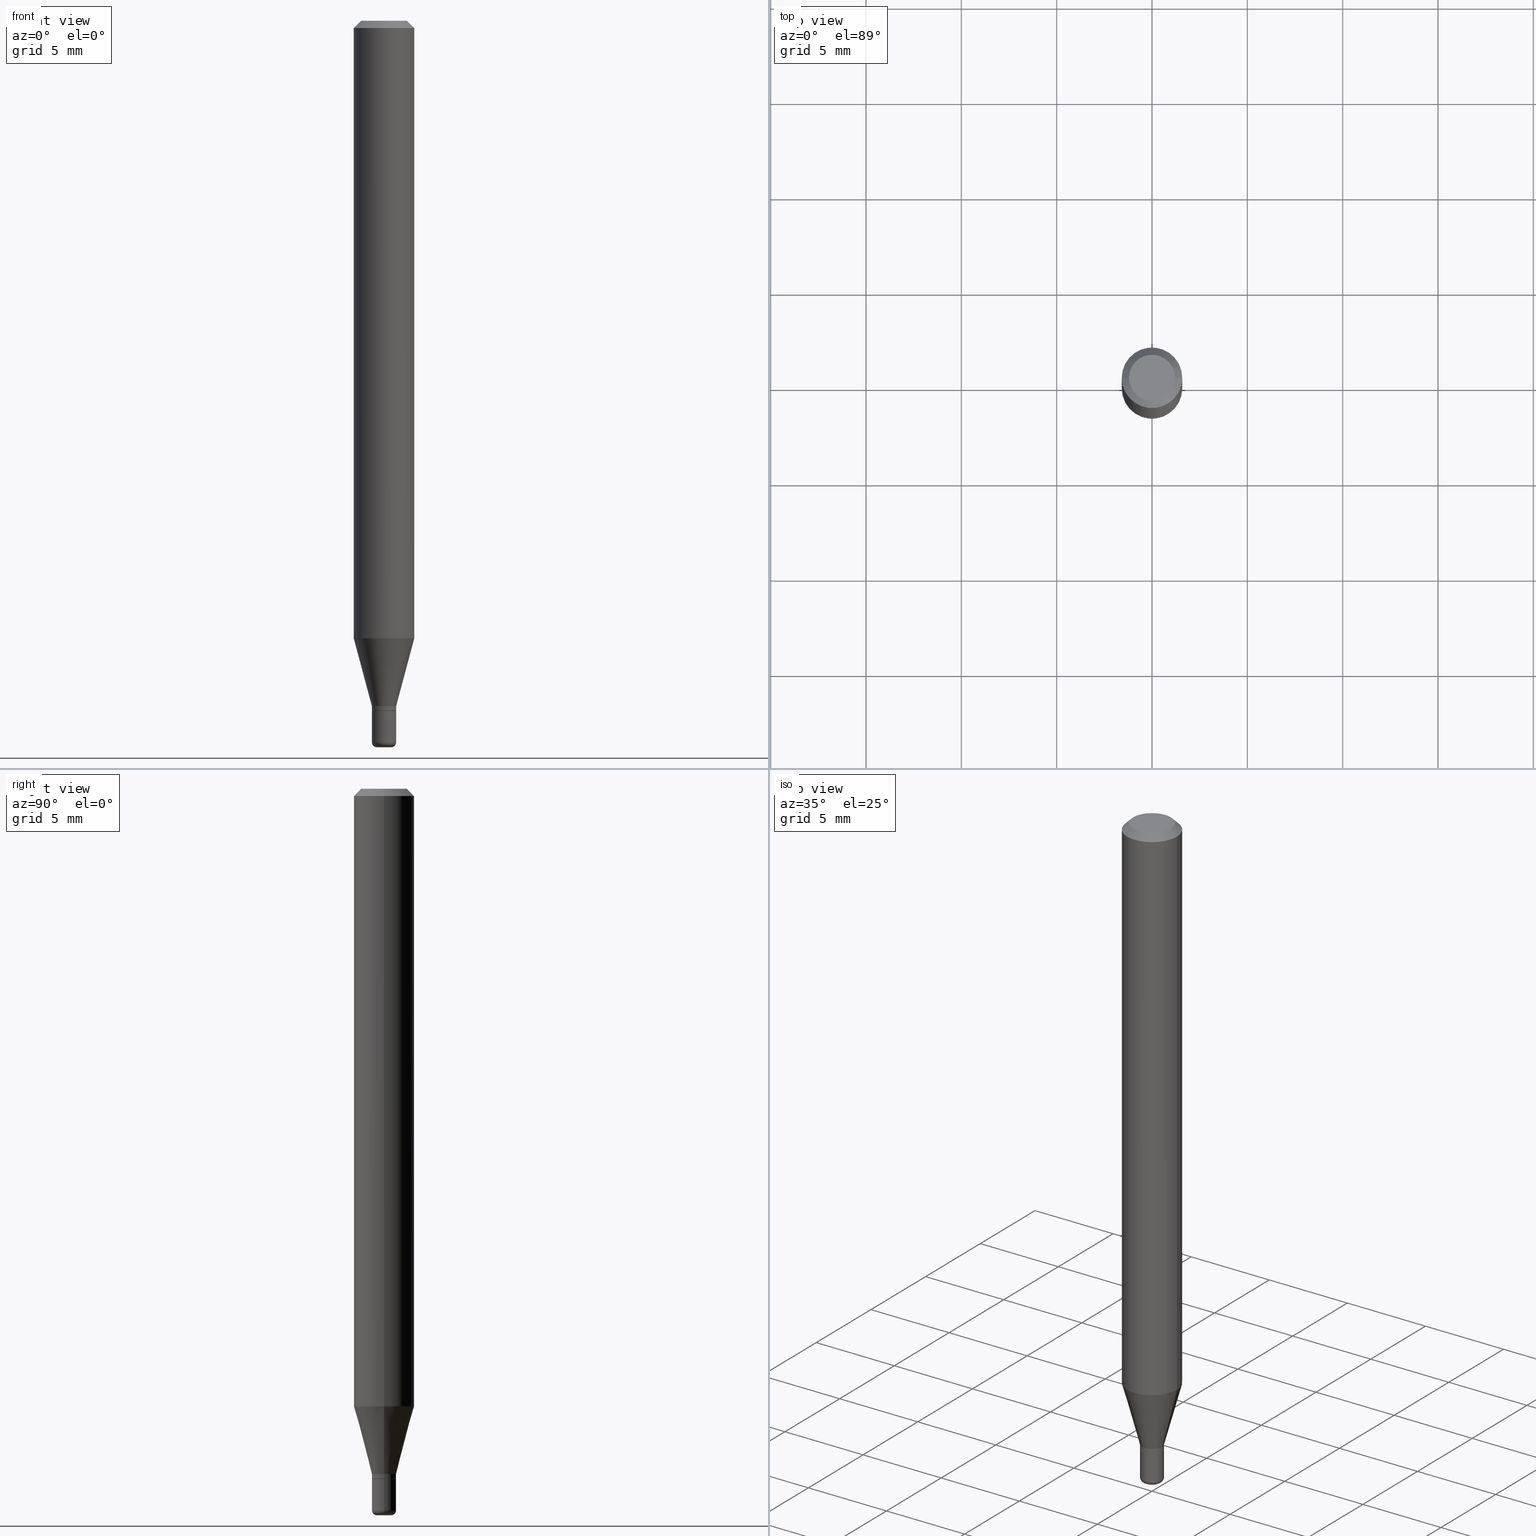
[diagram: canonical four-view strip — front | top / right | iso, engineering-drawing reading convention]
A machine part, canonical four-view strip (front | top / right | iso — engineering-drawing reading convention). The complete STEP part file that produces these views, byte-faithful:
ISO-10303-21;
HEADER;
FILE_DESCRIPTION (( 'STEP AP203' ),
    '1' );
FILE_NAME ('08523.STEP',
    '2024-02-29T19:41:33',
    ( '' ),
    ( '' ),
    'SwSTEP 2.0',
    'SolidWorks 2023',
    '' );
FILE_SCHEMA (( 'CONFIG_CONTROL_DESIGN' ));
ENDSEC;

DATA;
#1 = EDGE_CURVE ( 'NONE', #122, #200, #353, .T. ) ;
#2 = ORIENTED_EDGE ( 'NONE', *, *, #126, .T. ) ;
#3 = FACE_OUTER_BOUND ( 'NONE', #170, .T. ) ;
#4 = ORIENTED_EDGE ( 'NONE', *, *, #1, .F. ) ;
#5 = AXIS2_PLACEMENT_3D ( 'NONE', #328, #449, #320 ) ;
#6 = EDGE_LOOP ( 'NONE', ( #309, #46, #158, #438 ) ) ;
#7 = ADVANCED_BREP_SHAPE_REPRESENTATION ( '08523', ( #233, #143, #414 ), #221 ) ;
#8 = VERTEX_POINT ( 'NONE', #388 ) ;
#9 = CARTESIAN_POINT ( 'NONE',  ( 3.484793048813820547E-29, -4.975360907851483175E-15, -1.425000000000000266 ) ) ;
#10 = EDGE_CURVE ( 'NONE', #122, #473, #302, .T. ) ;
#11 = FACE_OUTER_BOUND ( 'NONE', #314, .T. ) ;
#12 = DIRECTION ( 'NONE',  ( -1.000000000000000000, 6.982962677686265922E-15, -4.876176775795935793E-29 ) ) ;
#13 = CARTESIAN_POINT ( 'NONE',  ( 3.668203209277632395E-31, -5.237222008264614861E-17, -0.01499999999999970281 ) ) ;
#14 = ADVANCED_FACE ( 'NONE', ( #389 ), #422, .T. ) ;
#15 = DIRECTION ( 'NONE',  ( 1.000000000000000000, -6.982962677686282488E-15, 0.000000000000000000 ) ) ;
#16 = ADVANCED_FACE ( 'NONE', ( #383 ), #30, .T. ) ;
#17 = FACE_OUTER_BOUND ( 'NONE', #285, .T. ) ;
#18 = AXIS2_PLACEMENT_3D ( 'NONE', #78, #474, #237 ) ;
#19 = CIRCLE ( 'NONE', #311, 0.06250000000000000000 ) ;
#20 = CARTESIAN_POINT ( 'NONE',  ( 3.483570314410727746E-29, -4.973615167182062460E-15, -1.424500000000000322 ) ) ;
#21 = FACE_OUTER_BOUND ( 'NONE', #43, .T. ) ;
#22 = PERSON_AND_ORGANIZATION ( #80, #323 ) ;
#23 = DIRECTION ( 'NONE',  ( -2.445468806185136597E-29, 3.491481338843145583E-15, 1.000000000000000000 ) ) ;
#24 = EDGE_CURVE ( 'NONE', #238, #264, #97, .T. ) ;
#25 = DIRECTION ( 'NONE',  ( -0.7071067811866199593, 7.493145998870616062E-15, 0.7071067811864750752 ) ) ;
#26 = VERTEX_POINT ( 'NONE', #420 ) ;
#27 = EDGE_CURVE ( 'NONE', #280, #26, #220, .T. ) ;
#28 = DIRECTION ( 'NONE',  ( 1.000000000000000000, -6.982962677686261977E-15, 0.000000000000000000 ) ) ;
#29 = DIRECTION ( 'NONE',  ( 2.445468806185136597E-29, -3.491481338843145583E-15, -1.000000000000000000 ) ) ;
#30 = CYLINDRICAL_SURFACE ( 'NONE', #310, 0.06250000000000000000 ) ;
#31 = AXIS2_PLACEMENT_3D ( 'NONE', #379, #53, #500 ) ;
#32 = CARTESIAN_POINT ( 'NONE',  ( -0.02449999999999996972, -4.801277937590258869E-15, -1.425000000000000266 ) ) ;
#33 = LOCAL_TIME ( 14, 41, 33.00000000000000000, #68 ) ;
#34 = DIRECTION ( 'NONE',  ( -2.445468806185136877E-29, 3.491481338843145188E-15, 1.000000000000000000 ) ) ;
#35 = PERSON_AND_ORGANIZATION ( #80, #323 ) ;
#36 = DIRECTION ( 'NONE',  ( -2.445468806185136597E-29, 3.491481338843145583E-15, 1.000000000000000000 ) ) ;
#37 = VERTEX_POINT ( 'NONE', #307 ) ;
#38 = LOCAL_TIME ( 14, 41, 33.00000000000000000, #223 ) ;
#39 = ORIENTED_EDGE ( 'NONE', *, *, #42, .F. ) ;
#40 = CC_DESIGN_PERSON_AND_ORGANIZATION_ASSIGNMENT ( #503, #423, ( #398 ) ) ;
#41 = ORIENTED_EDGE ( 'NONE', *, *, #484, .T. ) ;
#42 = EDGE_CURVE ( 'NONE', #390, #168, #57, .T. ) ;
#43 = EDGE_LOOP ( 'NONE', ( #79, #241, #4, #480 ) ) ;
#44 = CARTESIAN_POINT ( 'NONE',  ( -0.02499999999999998057, -4.385263914750983308E-15, -1.415000000000000036 ) ) ;
#45 = VECTOR ( 'NONE', #62, 39.37007874015748143 ) ;
#46 = ORIENTED_EDGE ( 'NONE', *, *, #210, .F. ) ;
#47 = EDGE_CURVE ( 'NONE', #108, #199, #516, .T. ) ;
#48 = ORIENTED_EDGE ( 'NONE', *, *, #421, .F. ) ;
#49 = DIRECTION ( 'NONE',  ( 1.000000000000000000, -6.982962677686269866E-15, 0.000000000000000000 ) ) ;
#50 = DIRECTION ( 'NONE',  ( -2.445468806185136877E-29, 3.491481338843145188E-15, 1.000000000000000000 ) ) ;
#51 = CONICAL_SURFACE ( 'NONE', #246, 0.06250000000000000000, 0.7853981633974488341 ) ;
#52 = AXIS2_PLACEMENT_3D ( 'NONE', #149, #295, #459 ) ;
#53 = DIRECTION ( 'NONE',  ( -2.445468806185136597E-29, 3.491481338843145583E-15, 1.000000000000000000 ) ) ;
#54 = ADVANCED_FACE ( 'NONE', ( #216 ), #402, .T. ) ;
#55 = APPROVAL ( #458, 'UNSPECIFIED' ) ;
#56 = FACE_OUTER_BOUND ( 'NONE', #427, .T. ) ;
#57 = LINE ( 'NONE', #32, #232 ) ;
#58 = CARTESIAN_POINT ( 'NONE',  ( 3.484793048813820547E-29, -4.975360907851483175E-15, -1.425000000000000266 ) ) ;
#59 = DATE_TIME_ROLE ( 'creation_date' ) ;
#60 = DIRECTION ( 'NONE',  ( 0.7071067811866199593, -2.468850131083015945E-15, 0.7071067811864750752 ) ) ;
#61 = DIRECTION ( 'NONE',  ( 1.000000000000000000, -6.982962677686254878E-15, 0.000000000000000000 ) ) ;
#62 = DIRECTION ( 'NONE',  ( -0.2588190451025205174, 5.211531920934544731E-15, 0.9659258262890684232 ) ) ;
#63 = COORDINATED_UNIVERSAL_TIME_OFFSET ( 5, 0, .BEHIND. ) ;
#64 = DIRECTION ( 'NONE',  ( -2.445468806185136597E-29, 3.491481338843145583E-15, 1.000000000000000000 ) ) ;
#65 = CARTESIAN_POINT ( 'NONE',  ( 0.000000000000000000, 0.000000000000000000, 0.000000000000000000 ) ) ;
#66 = EDGE_CURVE ( 'NONE', #200, #137, #472, .T. ) ;
#67 = EDGE_CURVE ( 'NONE', #426, #396, #75, .T. ) ;
#68 = COORDINATED_UNIVERSAL_TIME_OFFSET ( 5, 0, .BEHIND. ) ;
#69 = CARTESIAN_POINT ( 'NONE',  ( 3.668203209277632395E-31, -5.237222008264614861E-17, -0.01499999999999970281 ) ) ;
#70 = DIRECTION ( 'NONE',  ( 1.000000000000000000, -6.982962677686265922E-15, 4.876176775795935793E-29 ) ) ;
#71 = APPLICATION_CONTEXT ( 'configuration controlled 3d designs of mechanical parts and assemblies' ) ;
#72 = EDGE_LOOP ( 'NONE', ( #358, #90, #195, #482 ) ) ;
#73 = ADVANCED_FACE ( 'NONE', ( #465 ), #150, .T. ) ;
#74 = APPLICATION_PROTOCOL_DEFINITION ( 'international standard', 'config_control_design', 1994, #71 ) ;
#75 = CIRCLE ( 'NONE', #201, 0.02499999999999998057 ) ;
#76 = CC_DESIGN_PERSON_AND_ORGANIZATION_ASSIGNMENT ( #35, #329, ( #398 ) ) ;
#77 = AXIS2_PLACEMENT_3D ( 'NONE', #499, #446, #174 ) ;
#78 = CARTESIAN_POINT ( 'NONE',  ( 3.643748521215853910E-29, -5.202307194876288105E-15, -1.490000000000000213 ) ) ;
#79 = ORIENTED_EDGE ( 'NONE', *, *, #67, .T. ) ;
#80 = PERSON ( 'UNSPECIFIED', 'UNSPECIFIED', 'UNSPECIFIED', ('UNSPECIFIED'), ('UNSPECIFIED'), ('UNSPECIFIED') ) ;
#81 = DIRECTION ( 'NONE',  ( -2.445468806185136597E-29, 3.491481338843145583E-15, 1.000000000000000000 ) ) ;
#82 = APPROVAL ( #106, 'UNSPECIFIED' ) ;
#83 = ORIENTED_EDGE ( 'NONE', *, *, #208, .F. ) ;
#84 = APPLICATION_CONTEXT ( 'configuration controlled 3d designs of mechanical parts and assemblies' ) ;
#85 = CONICAL_SURFACE ( 'NONE', #464, 0.02499999999999998057, 0.2617993877991491858 ) ;
#86 = ORIENTED_EDGE ( 'NONE', *, *, #161, .T. ) ;
#87 = ADVANCED_FACE ( 'NONE', ( #17 ), #51, .T. ) ;
#88 = EDGE_LOOP ( 'NONE', ( #231, #283, #518, #204 ) ) ;
#89 = DIRECTION ( 'NONE',  ( 1.000000000000000000, -6.982962677686254878E-15, 0.000000000000000000 ) ) ;
#90 = ORIENTED_EDGE ( 'NONE', *, *, #208, .T. ) ;
#91 = CONICAL_SURFACE ( 'NONE', #360, 0.02499999999999998057, 0.2617993877991491858 ) ;
#92 = AXIS2_PLACEMENT_3D ( 'NONE', #9, #98, #15 ) ;
#93 = ORIENTED_EDGE ( 'NONE', *, *, #148, .F. ) ;
#94 = LINE ( 'NONE', #408, #514 ) ;
#95 = PRODUCT_RELATED_PRODUCT_CATEGORY ( 'detail', '', ( #159 ) ) ;
#96 = ORIENTED_EDGE ( 'NONE', *, *, #27, .F. ) ;
#97 = CIRCLE ( 'NONE', #386, 0.009999999999999944697 ) ;
#98 = DIRECTION ( 'NONE',  ( -2.445468806185136597E-29, 3.491481338843145583E-15, 1.000000000000000000 ) ) ;
#99 = VECTOR ( 'NONE', #443, 39.37007874015748143 ) ;
#100 = CARTESIAN_POINT ( 'NONE',  ( 0.02499999999999997363, -1.745740669421564705E-16, 1.219044193948982547E-30 ) ) ;
#101 = CARTESIAN_POINT ( 'NONE',  ( -6.680649051745406845E-45, 9.538196290434862081E-31, 2.731847993664263218E-16 ) ) ;
#102 = DATE_AND_TIME ( #510, #405 ) ;
#103 = LINE ( 'NONE', #410, #404 ) ;
#104 = CARTESIAN_POINT ( 'NONE',  ( 0.000000000000000000, 0.000000000000000000, 0.000000000000000000 ) ) ;
#105 = DIRECTION ( 'NONE',  ( 1.000000000000000000, -6.982962677686261977E-15, 0.000000000000000000 ) ) ;
#106 = APPROVAL_STATUS ( 'not_yet_approved' ) ;
#107 = DIRECTION ( 'NONE',  ( 1.000000000000000000, -6.982962677686265922E-15, 4.876176775795935232E-29 ) ) ;
#108 = VERTEX_POINT ( 'NONE', #385 ) ;
#109 = CONICAL_SURFACE ( 'NONE', #286, 0.02449999999999996972, 0.7853981633975507526 ) ;
#110 = CIRCLE ( 'NONE', #239, 0.06250000000000000000 ) ;
#111 = LINE ( 'NONE', #100, #378 ) ;
#112 = DIRECTION ( 'NONE',  ( -2.445468806185136877E-29, 3.491481338843145188E-15, 1.000000000000000000 ) ) ;
#113 = ORIENTED_EDGE ( 'NONE', *, *, #1, .T. ) ;
#114 = PERSON_AND_ORGANIZATION_ROLE ( 'classification_officer' ) ;
#115 = DIRECTION ( 'NONE',  ( 2.445468806185136597E-29, -3.491481338843145583E-15, -1.000000000000000000 ) ) ;
#116 = EDGE_LOOP ( 'NONE', ( #312, #363 ) ) ;
#117 = ADVANCED_FACE ( 'NONE', ( #382 ), #189, .T. ) ;
#118 = APPROVAL_ROLE ( '' ) ;
#119 = CARTESIAN_POINT ( 'NONE',  ( 3.460338360751968441E-29, -4.940446094463050737E-15, -1.415000000000000036 ) ) ;
#120 = ORIENTED_EDGE ( 'NONE', *, *, #66, .T. ) ;
#121 = CONICAL_SURFACE ( 'NONE', #292, 0.02449999999999996972, 0.7853981633975507526 ) ;
#122 = VERTEX_POINT ( 'NONE', #407 ) ;
#123 = ADVANCED_FACE ( 'NONE', ( #411 ), #251, .T. ) ;
#124 = ORIENTED_EDGE ( 'NONE', *, *, #338, .F. ) ;
#125 = DIRECTION ( 'NONE',  ( -2.445468806185136597E-29, 3.491481338843145583E-15, 1.000000000000000000 ) ) ;
#126 = EDGE_CURVE ( 'NONE', #347, #473, #436, .T. ) ;
#127 = ADVANCED_FACE ( 'NONE', ( #3 ), #109, .T. ) ;
#128 = ORIENTED_EDGE ( 'NONE', *, *, #198, .F. ) ;
#129 = AXIS2_PLACEMENT_3D ( 'NONE', #330, #219, #61 ) ;
#130 = DIRECTION ( 'NONE',  ( 1.000000000000000000, -6.982962677686282488E-15, 0.000000000000000000 ) ) ;
#131 = CIRCLE ( 'NONE', #276, 0.01500000000000000465 ) ;
#132 = APPROVAL_PERSON_ORGANIZATION ( #343, #82, #118 ) ;
#133 = ORIENTED_EDGE ( 'NONE', *, *, #431, .F. ) ;
#134 = CARTESIAN_POINT ( 'NONE',  ( 3.484793048813820547E-29, -4.975360907851483175E-15, -1.425000000000000266 ) ) ;
#135 = ADVANCED_FACE ( 'NONE', ( #359 ), #121, .T. ) ;
#136 = ORIENTED_EDGE ( 'NONE', *, *, #392, .T. ) ;
#137 = VERTEX_POINT ( 'NONE', #506 ) ;
#138 = PLANE ( 'NONE',  #247 ) ;
#139 = ADVANCED_FACE ( 'NONE', ( #21 ), #91, .T. ) ;
#140 = VECTOR ( 'NONE', #430, 39.37007874015748143 ) ;
#141 = CARTESIAN_POINT ( 'NONE',  ( 0.02499999999999994588, -5.376881261818443984E-15, -1.490000000000000213 ) ) ;
#142 = AXIS2_PLACEMENT_3D ( 'NONE', #58, #333, #155 ) ;
#143 = MANIFOLD_SOLID_BREP ( 'Body-Move/Copy2[2]', #450 ) ;
#144 = PLANE ( 'NONE',  #202 ) ;
#145 = CARTESIAN_POINT ( 'NONE',  ( 3.643748521215853910E-29, -5.202307194876288105E-15, -1.490000000000000213 ) ) ;
#146 = ADVANCED_FACE ( 'NONE', ( #269 ), #291, .T. ) ;
#147 = PERSON_AND_ORGANIZATION ( #80, #323 ) ;
#148 = EDGE_CURVE ( 'NONE', #347, #351, #173, .T. ) ;
#149 = CARTESIAN_POINT ( 'NONE',  ( 3.460338360751968441E-29, -4.940446094463050737E-15, -1.415000000000000036 ) ) ;
#150 = CYLINDRICAL_SURFACE ( 'NONE', #322, 0.02499999999999997363 ) ;
#151 = DIRECTION ( 'NONE',  ( 0.000000000000000000, 0.000000000000000000, 1.000000000000000000 ) ) ;
#152 = CYLINDRICAL_SURFACE ( 'NONE', #365, 0.02499999999999997710 ) ;
#153 = CARTESIAN_POINT ( 'NONE',  ( -0.06250000000000000000, 4.440892098500626162E-16, -3.074334431409316114E-30 ) ) ;
#154 = DATE_TIME_ROLE ( 'classification_date' ) ;
#155 = DIRECTION ( 'NONE',  ( 1.000000000000000000, -6.982962677686282488E-15, 0.000000000000000000 ) ) ;
#156 = DIRECTION ( 'NONE',  ( -1.000000000000000000, 7.105427357600964782E-15, 0.000000000000000000 ) ) ;
#157 = CALENDAR_DATE ( 2024, 29, 2 ) ;
#158 = ORIENTED_EDGE ( 'NONE', *, *, #367, .T. ) ;
#159 = PRODUCT ( '08523', '08523', '', ( #257 ) ) ;
#160 = CARTESIAN_POINT ( 'NONE',  ( 0.06250000000000000000, -4.811533449433669144E-16, -0.01499999999999970281 ) ) ;
#161 = EDGE_CURVE ( 'NONE', #390, #8, #235, .T. ) ;
#162 = EDGE_LOOP ( 'NONE', ( #305, #224, #163, #395 ) ) ;
#163 = ORIENTED_EDGE ( 'NONE', *, *, #484, .F. ) ;
#164 = CARTESIAN_POINT ( 'NONE',  ( 3.484793048813820547E-29, -4.975360907851483175E-15, -1.425000000000000266 ) ) ;
#165 = EDGE_LOOP ( 'NONE', ( #39, #86, #417, #124 ) ) ;
#166 = CIRCLE ( 'NONE', #142, 0.02449999999999996972 ) ;
#167 = CC_DESIGN_APPROVAL ( #82, ( #478 ) ) ;
#168 = VERTEX_POINT ( 'NONE', #412 ) ;
#169 = DIRECTION ( 'NONE',  ( 2.438088387897960049E-29, -3.491481338843145188E-15, -1.000000000000000000 ) ) ;
#170 = EDGE_LOOP ( 'NONE', ( #250, #185, #128, #356 ) ) ;
#171 = AXIS2_PLACEMENT_3D ( 'NONE', #65, #36, #70 ) ;
#172 = PLANE ( 'NONE',  #476 ) ;
#173 = CIRCLE ( 'NONE', #77, 0.04750000000000000749 ) ;
#174 = DIRECTION ( 'NONE',  ( 1.000000000000000000, -6.982962677686266711E-15, 4.852736867747365086E-29 ) ) ;
#175 = EDGE_CURVE ( 'NONE', #426, #122, #214, .T. ) ;
#176 = DIRECTION ( 'NONE',  ( 1.000000000000000000, -6.982962677686265922E-15, 4.876176775795935232E-29 ) ) ;
#177 = CARTESIAN_POINT ( 'NONE',  ( 0.02499999999999997710, -1.745740669421564952E-16, 1.219044193948982897E-30 ) ) ;
#178 = CC_DESIGN_PERSON_AND_ORGANIZATION_ASSIGNMENT ( #22, #471, ( #159 ) ) ;
#179 = AXIS2_PLACEMENT_3D ( 'NONE', #457, #461, #502 ) ;
#180 = DIRECTION ( 'NONE',  ( 2.438088387897960049E-29, -3.491481338843145188E-15, -1.000000000000000000 ) ) ;
#181 = CARTESIAN_POINT ( 'NONE',  ( 0.04750000000000000749, -4.035134999187568762E-16, 2.731847993664288856E-16 ) ) ;
#182 = DIRECTION ( 'NONE',  ( -2.445468806185136597E-29, 3.491481338843145583E-15, 1.000000000000000000 ) ) ;
#183 = DATE_AND_TIME ( #294, #33 ) ;
#184 = DIRECTION ( 'NONE',  ( -2.445468806185136597E-29, 3.491481338843145583E-15, 1.000000000000000000 ) ) ;
#185 = ORIENTED_EDGE ( 'NONE', *, *, #42, .T. ) ;
#186 = APPROVAL_ROLE ( '' ) ;
#187 = DIRECTION ( 'NONE',  ( 1.000000000000000000, -6.982962677686260400E-15, 0.000000000000000000 ) ) ;
#188 = CARTESIAN_POINT ( 'NONE',  ( 0.000000000000000000, 0.000000000000000000, 0.000000000000000000 ) ) ;
#189 = CONICAL_SURFACE ( 'NONE', #463, 0.06250000000000000000, 0.7853981633974488341 ) ;
#190 = APPROVAL_DATE_TIME ( #183, #511 ) ;
#191 = CIRCLE ( 'NONE', #287, 0.04750000000000000749 ) ;
#192 = CC_DESIGN_SECURITY_CLASSIFICATION ( #222, ( #398 ) ) ;
#193 = CARTESIAN_POINT ( 'NONE',  ( 3.668203209277632395E-31, -5.237222008264614861E-17, -0.01499999999999970281 ) ) ;
#194 = CARTESIAN_POINT ( 'NONE',  ( -0.06250000000000000000, 3.840629472727455270E-16, -0.01499999999999970281 ) ) ;
#195 = ORIENTED_EDGE ( 'NONE', *, *, #67, .F. ) ;
#196 = CIRCLE ( 'NONE', #331, 0.02499999999999994588 ) ;
#197 = ORIENTED_EDGE ( 'NONE', *, *, #337, .T. ) ;
#198 = EDGE_CURVE ( 'NONE', #37, #168, #434, .T. ) ;
#199 = VERTEX_POINT ( 'NONE', #141 ) ;
#200 = VERTEX_POINT ( 'NONE', #454 ) ;
#201 = AXIS2_PLACEMENT_3D ( 'NONE', #119, #301, #187 ) ;
#202 = AXIS2_PLACEMENT_3D ( 'NONE', #252, #293, #456 ) ;
#203 = DIRECTION ( 'NONE',  ( -2.445468806185136597E-29, 3.491481338843145583E-15, 1.000000000000000000 ) ) ;
#204 = ORIENTED_EDGE ( 'NONE', *, *, #240, .F. ) ;
#205 = FACE_OUTER_BOUND ( 'NONE', #116, .T. ) ;
#206 = ORIENTED_EDGE ( 'NONE', *, *, #421, .T. ) ;
#207 = CARTESIAN_POINT ( 'NONE',  ( -0.02449999999999996972, -4.798628710416148457E-15, -1.425000000000000266 ) ) ;
#208 = EDGE_CURVE ( 'NONE', #168, #396, #94, .T. ) ;
#209 = CARTESIAN_POINT ( 'NONE',  ( 0.06250000000000000000, -4.888073874380378612E-16, -0.01499999999999970281 ) ) ;
#210 = EDGE_CURVE ( 'NONE', #351, #347, #191, .T. ) ;
#211 = VECTOR ( 'NONE', #226, 39.37007874015748143 ) ;
#212 = CARTESIAN_POINT ( 'NONE',  ( 3.643748521215853910E-29, -5.202307194876288105E-15, -1.490000000000000213 ) ) ;
#213 = DIRECTION ( 'NONE',  ( -2.445468806185136597E-29, 3.491481338843145583E-15, 1.000000000000000000 ) ) ;
#214 = LINE ( 'NONE', #494, #99 ) ;
#215 = CYLINDRICAL_SURFACE ( 'NONE', #387, 0.02499999999999997363 ) ;
#216 = FACE_OUTER_BOUND ( 'NONE', #162, .T. ) ;
#217 = APPROVAL_STATUS ( 'not_yet_approved' ) ;
#218 = CARTESIAN_POINT ( 'NONE',  ( 3.668203209277704895E-29, -5.237222008264718177E-15, -1.500000000000000222 ) ) ;
#219 = DIRECTION ( 'NONE',  ( -2.445468806185136597E-29, 3.491481338843145583E-15, 1.000000000000000000 ) ) ;
#220 = CIRCLE ( 'NONE', #129, 0.02500000000000000139 ) ;
#221 =( GEOMETRIC_REPRESENTATION_CONTEXT ( 3 ) GLOBAL_UNCERTAINTY_ASSIGNED_CONTEXT ( ( #451 ) ) GLOBAL_UNIT_ASSIGNED_CONTEXT ( ( #489, #364, #492 ) ) REPRESENTATION_CONTEXT ( 'NONE', 'WORKASPACE' ) );
#222 = SECURITY_CLASSIFICATION ( '', '', #409 ) ;
#223 = COORDINATED_UNIVERSAL_TIME_OFFSET ( 5, 0, .BEHIND. ) ;
#224 = ORIENTED_EDGE ( 'NONE', *, *, #24, .T. ) ;
#225 = EDGE_CURVE ( 'NONE', #8, #390, #166, .T. ) ;
#226 = DIRECTION ( 'NONE',  ( -2.445468806185136877E-29, 3.491481338843145188E-15, 1.000000000000000000 ) ) ;
#227 = ORIENTED_EDGE ( 'NONE', *, *, #288, .T. ) ;
#228 = DATE_AND_TIME ( #462, #361 ) ;
#229 = ADVANCED_FACE ( 'NONE', ( #266 ), #85, .T. ) ;
#230 = EDGE_CURVE ( 'NONE', #199, #26, #111, .T. ) ;
#231 = ORIENTED_EDGE ( 'NONE', *, *, #66, .F. ) ;
#232 = VECTOR ( 'NONE', #25, 39.37007874015748143 ) ;
#233 = MANIFOLD_SOLID_BREP ( 'Body-Move/Copy2[1]', #345 ) ;
#234 = APPLICATION_PROTOCOL_DEFINITION ( 'international standard', 'config_control_design', 1994, #84 ) ;
#235 = CIRCLE ( 'NONE', #92, 0.02449999999999996972 ) ;
#236 = CARTESIAN_POINT ( 'NONE',  ( 0.06250000000000000000, -4.364351673553916694E-16, 3.047610484872459871E-30 ) ) ;
#237 = DIRECTION ( 'NONE',  ( 1.000000000000000000, -6.982962677686269866E-15, 4.883557194083113462E-29 ) ) ;
#238 = VERTEX_POINT ( 'NONE', #258 ) ;
#239 = AXIS2_PLACEMENT_3D ( 'NONE', #13, #255, #339 ) ;
#240 = EDGE_CURVE ( 'NONE', #137, #473, #110, .T. ) ;
#241 = ORIENTED_EDGE ( 'NONE', *, *, #431, .T. ) ;
#242 = CC_DESIGN_DATE_AND_TIME_ASSIGNMENT ( #228, #154, ( #222 ) ) ;
#243 = CARTESIAN_POINT ( 'NONE',  ( -0.02499999999999997363, 1.776356839400248591E-16, -1.229733772563725079E-30 ) ) ;
#244 = ORIENTED_EDGE ( 'NONE', *, *, #175, .T. ) ;
#245 = EDGE_LOOP ( 'NONE', ( #113, #120, #48, #491 ) ) ;
#246 = AXIS2_PLACEMENT_3D ( 'NONE', #69, #115, #267 ) ;
#247 = AXIS2_PLACEMENT_3D ( 'NONE', #445, #180, #12 ) ;
#248 = CARTESIAN_POINT ( 'NONE',  ( 3.643748521215853910E-29, -5.202307194876288105E-15, -1.490000000000000213 ) ) ;
#249 = DIRECTION ( 'NONE',  ( -2.445468806185136597E-29, 3.491481338843145583E-15, 1.000000000000000000 ) ) ;
#250 = ORIENTED_EDGE ( 'NONE', *, *, #225, .T. ) ;
#251 = TOROIDAL_SURFACE ( 'NONE', #18, 0.01500000000000000291, 0.009999999999999946432 ) ;
#252 = CARTESIAN_POINT ( 'NONE',  ( 3.484793048813820547E-29, -4.975360907851483175E-15, -1.425000000000000266 ) ) ;
#253 = CIRCLE ( 'NONE', #31, 0.01500000000000000465 ) ;
#254 = ADVANCED_FACE ( 'NONE', ( #415 ), #152, .T. ) ;
#255 = DIRECTION ( 'NONE',  ( -2.445468806185136597E-29, 3.491481338843145583E-15, 1.000000000000000000 ) ) ;
#256 = DIRECTION ( 'NONE',  ( 1.000000000000000000, -6.982962677686266711E-15, 4.852736867747365086E-29 ) ) ;
#257 = MECHANICAL_CONTEXT ( 'NONE', #84, 'mechanical' ) ;
#258 = CARTESIAN_POINT ( 'NONE',  ( -0.01500000000000000465, -5.077656054418483766E-15, -1.500000000000000222 ) ) ;
#259 = CARTESIAN_POINT ( 'NONE',  ( 0.01500000000000000291, -5.307051635041582264E-15, -1.490000000000000213 ) ) ;
#260 = CARTESIAN_POINT ( 'NONE',  ( 0.02499999999999998057, -5.115020161405207405E-15, -1.415000000000000036 ) ) ;
#261 = APPROVAL_DATE_TIME ( #102, #82 ) ;
#262 = LINE ( 'NONE', #194, #504 ) ;
#263 = DIRECTION ( 'NONE',  ( -2.445468806185136597E-29, 3.491481338843145583E-15, 1.000000000000000000 ) ) ;
#264 = VERTEX_POINT ( 'NONE', #380 ) ;
#265 = PERSON_AND_ORGANIZATION ( #80, #323 ) ;
#266 = FACE_OUTER_BOUND ( 'NONE', #324, .T. ) ;
#267 = DIRECTION ( 'NONE',  ( -1.000000000000000000, 6.982962677686266711E-15, 0.000000000000000000 ) ) ;
#268 = ORIENTED_EDGE ( 'NONE', *, *, #367, .F. ) ;
#269 = FACE_OUTER_BOUND ( 'NONE', #88, .T. ) ;
#270 = CALENDAR_DATE ( 2024, 29, 2 ) ;
#271 = DIRECTION ( 'NONE',  ( 1.000000000000000000, -6.982962677686269866E-15, 4.883557194083113462E-29 ) ) ;
#272 = ADVANCED_FACE ( 'NONE', ( #56 ), #215, .T. ) ;
#273 = CARTESIAN_POINT ( 'NONE',  ( 3.118090342014177952E-29, -4.451806628829005278E-15, -1.275048094716166869 ) ) ;
#274 = EDGE_LOOP ( 'NONE', ( #83, #335, #227, #444 ) ) ;
#275 = DIRECTION ( 'NONE',  ( -2.438088387897960049E-29, 3.491481338843145188E-15, 1.000000000000000000 ) ) ;
#276 = AXIS2_PLACEMENT_3D ( 'NONE', #218, #381, #377 ) ;
#277 = ORIENTED_EDGE ( 'NONE', *, *, #230, .F. ) ;
#278 = DIRECTION ( 'NONE',  ( 1.000000000000000000, -6.982962677686282488E-15, 0.000000000000000000 ) ) ;
#279 = VECTOR ( 'NONE', #112, 39.37007874015748143 ) ;
#280 = VERTEX_POINT ( 'NONE', #327 ) ;
#281 = AXIS2_PLACEMENT_3D ( 'NONE', #20, #23, #28 ) ;
#282 = APPROVAL_PERSON_ORGANIZATION ( #147, #55, #413 ) ;
#283 = ORIENTED_EDGE ( 'NONE', *, *, #496, .T. ) ;
#284 = DIRECTION ( 'NONE',  ( -2.445468806185136597E-29, 3.491481338843145583E-15, 1.000000000000000000 ) ) ;
#285 = EDGE_LOOP ( 'NONE', ( #93, #2, #206, #268 ) ) ;
#286 = AXIS2_PLACEMENT_3D ( 'NONE', #164, #81, #130 ) ;
#287 = AXIS2_PLACEMENT_3D ( 'NONE', #101, #249, #256 ) ;
#288 = EDGE_CURVE ( 'NONE', #37, #426, #419, .T. ) ;
#289 = DIRECTION ( 'NONE',  ( 1.000000000000000000, -6.982962677686269866E-15, 0.000000000000000000 ) ) ;
#290 = DIRECTION ( 'NONE',  ( 1.000000000000000000, -6.982962677686262766E-15, 0.000000000000000000 ) ) ;
#291 = CYLINDRICAL_SURFACE ( 'NONE', #5, 0.06250000000000000000 ) ;
#292 = AXIS2_PLACEMENT_3D ( 'NONE', #481, #125, #278 ) ;
#293 = DIRECTION ( 'NONE',  ( -2.438088387897960049E-29, 3.491481338843145188E-15, 1.000000000000000000 ) ) ;
#294 = CALENDAR_DATE ( 2024, 29, 2 ) ;
#295 = DIRECTION ( 'NONE',  ( -2.445468806185136597E-29, 3.491481338843145583E-15, 1.000000000000000000 ) ) ;
#296 = DIRECTION ( 'NONE',  ( -2.445468806185136597E-29, 3.491481338843145583E-15, 1.000000000000000000 ) ) ;
#297 = ORIENTED_EDGE ( 'NONE', *, *, #384, .F. ) ;
#298 = PERSON_AND_ORGANIZATION ( #80, #323 ) ;
#299 = ADVANCED_FACE ( 'NONE', ( #505 ), #144, .F. ) ;
#300 = DIRECTION ( 'NONE',  ( -2.445468806185136597E-29, 3.491481338843145583E-15, 1.000000000000000000 ) ) ;
#301 = DIRECTION ( 'NONE',  ( -2.445468806185136597E-29, 3.491481338843145583E-15, 1.000000000000000000 ) ) ;
#302 = LINE ( 'NONE', #236, #493 ) ;
#303 = DATE_AND_TIME ( #270, #416 ) ;
#304 = DIRECTION ( 'NONE',  ( 1.000000000000000000, -6.982962677686260400E-15, 0.000000000000000000 ) ) ;
#305 = ORIENTED_EDGE ( 'NONE', *, *, #437, .T. ) ;
#306 = DIRECTION ( 'NONE',  ( 1.000000000000000000, 0.000000000000000000, 0.000000000000000000 ) ) ;
#307 = CARTESIAN_POINT ( 'NONE',  ( 0.02499999999999997363, -5.148189234124219128E-15, -1.424500000000000322 ) ) ;
#308 = ORIENTED_EDGE ( 'NONE', *, *, #357, .T. ) ;
#309 = ORIENTED_EDGE ( 'NONE', *, *, #126, .F. ) ;
#310 = AXIS2_PLACEMENT_3D ( 'NONE', #188, #263, #424 ) ;
#311 = AXIS2_PLACEMENT_3D ( 'NONE', #369, #203, #290 ) ;
#312 = ORIENTED_EDGE ( 'NONE', *, *, #210, .T. ) ;
#313 = ORIENTED_EDGE ( 'NONE', *, *, #225, .F. ) ;
#314 = EDGE_LOOP ( 'NONE', ( #460, #394 ) ) ;
#315 = CIRCLE ( 'NONE', #495, 0.02499999999999994588 ) ;
#316 = LENGTH_MEASURE_WITH_UNIT ( LENGTH_MEASURE( 0.02539999999999999897 ), #498 );
#317 = ORIENTED_EDGE ( 'NONE', *, *, #47, .T. ) ;
#318 = EDGE_LOOP ( 'NONE', ( #341, #197, #317, #488 ) ) ;
#319 = FACE_OUTER_BOUND ( 'NONE', #490, .T. ) ;
#320 = DIRECTION ( 'NONE',  ( 1.000000000000000000, -6.982962677686266711E-15, 4.876176775795935793E-29 ) ) ;
#321 = ORIENTED_EDGE ( 'NONE', *, *, #441, .T. ) ;
#322 = AXIS2_PLACEMENT_3D ( 'NONE', #104, #296, #107 ) ;
#323 = ORGANIZATION ( 'UNSPECIFIED', 'UNSPECIFIED', '' ) ;
#324 = EDGE_LOOP ( 'NONE', ( #133, #308, #244, #470 ) ) ;
#325 = LINE ( 'NONE', #447, #45 ) ;
#326 = DIRECTION ( 'NONE',  ( -1.000000000000000000, 6.982962677686265922E-15, -4.876176775795935793E-29 ) ) ;
#327 = CARTESIAN_POINT ( 'NONE',  ( -0.02500000000000000139, -4.911198367423860436E-15, -1.425000000000000266 ) ) ;
#328 = CARTESIAN_POINT ( 'NONE',  ( 0.000000000000000000, 0.000000000000000000, 0.000000000000000000 ) ) ;
#329 = PERSON_AND_ORGANIZATION_ROLE ( 'creator' ) ;
#330 = CARTESIAN_POINT ( 'NONE',  ( 3.484793048813820547E-29, -4.975360907851483175E-15, -1.425000000000000266 ) ) ;
#331 = AXIS2_PLACEMENT_3D ( 'NONE', #248, #401, #49 ) ;
#332 = PERSON_AND_ORGANIZATION ( #80, #323 ) ;
#333 = DIRECTION ( 'NONE',  ( -2.445468806185136597E-29, 3.491481338843145583E-15, 1.000000000000000000 ) ) ;
#334 = CARTESIAN_POINT ( 'NONE',  ( -0.01500000000000000291, -5.095725784512272983E-15, -1.490000000000000213 ) ) ;
#335 = ORIENTED_EDGE ( 'NONE', *, *, #338, .T. ) ;
#336 = EDGE_CURVE ( 'NONE', #8, #37, #103, .T. ) ;
#337 = EDGE_CURVE ( 'NONE', #238, #108, #131, .T. ) ;
#338 = EDGE_CURVE ( 'NONE', #168, #37, #486, .T. ) ;
#339 = DIRECTION ( 'NONE',  ( 1.000000000000000000, -6.982962677686266711E-15, 0.000000000000000000 ) ) ;
#340 = DIRECTION ( 'NONE',  ( 1.000000000000000000, -6.982962677686274599E-15, 0.000000000000000000 ) ) ;
#341 = ORIENTED_EDGE ( 'NONE', *, *, #24, .F. ) ;
#342 = DIMENSIONAL_EXPONENTS ( 1.000000000000000000, 0.000000000000000000, 0.000000000000000000, 0.000000000000000000, 0.000000000000000000, 0.000000000000000000, 0.000000000000000000 ) ;
#343 = PERSON_AND_ORGANIZATION ( #80, #323 ) ;
#344 = DIRECTION ( 'NONE',  ( 7.105427357601001859E-15, 1.000000000000000000, -3.491481338843145583E-15 ) ) ;
#345 = CLOSED_SHELL ( 'NONE', ( #54, #272, #403, #73, #123, #483 ) ) ;
#346 = AXIS2_PLACEMENT_3D ( 'NONE', #134, #284, #89 ) ;
#347 = VERTEX_POINT ( 'NONE', #181 ) ;
#348 = CARTESIAN_POINT ( 'NONE',  ( 0.000000000000000000, 0.000000000000000000, 0.000000000000000000 ) ) ;
#349 = DIRECTION ( 'NONE',  ( -1.000000000000000000, 6.982962677686266711E-15, 0.000000000000000000 ) ) ;
#350 = CC_DESIGN_PERSON_AND_ORGANIZATION_ASSIGNMENT ( #332, #114, ( #222 ) ) ;
#351 = VERTEX_POINT ( 'NONE', #508 ) ;
#352 = DIRECTION ( 'NONE',  ( -0.7071067811865479058, 2.468850131082261005E-15, -0.7071067811865471286 ) ) ;
#353 = CIRCLE ( 'NONE', #375, 0.06250000000000000000 ) ;
#354 = CIRCLE ( 'NONE', #179, 0.06250000000000000000 ) ;
#355 = EDGE_LOOP ( 'NONE', ( #297, #321, #435, #96 ) ) ;
#356 = ORIENTED_EDGE ( 'NONE', *, *, #336, .F. ) ;
#357 = EDGE_CURVE ( 'NONE', #396, #426, #452, .T. ) ;
#358 = ORIENTED_EDGE ( 'NONE', *, *, #198, .T. ) ;
#359 = FACE_OUTER_BOUND ( 'NONE', #165, .T. ) ;
#360 = AXIS2_PLACEMENT_3D ( 'NONE', #501, #182, #455 ) ;
#361 = LOCAL_TIME ( 14, 41, 33.00000000000000000, #507 ) ;
#362 = PLANE ( 'NONE',  #376 ) ;
#363 = ORIENTED_EDGE ( 'NONE', *, *, #148, .T. ) ;
#364 =( NAMED_UNIT ( * ) PLANE_ANGLE_UNIT ( ) SI_UNIT ( $, .RADIAN. ) );
#365 = AXIS2_PLACEMENT_3D ( 'NONE', #406, #64, #371 ) ;
#366 = CARTESIAN_POINT ( 'NONE',  ( 3.316907271900976589E-16, 0.04750000000000000749, -2.925296391183627249E-17 ) ) ;
#367 = EDGE_CURVE ( 'NONE', #351, #137, #262, .T. ) ;
#368 = DIRECTION ( 'NONE',  ( -2.445468806185136877E-29, 3.491481338843145188E-15, 1.000000000000000000 ) ) ;
#369 = CARTESIAN_POINT ( 'NONE',  ( 3.118090342014177952E-29, -4.451806628829005278E-15, -1.275048094716166869 ) ) ;
#370 = DIRECTION ( 'NONE',  ( -2.445468806185136597E-29, 3.491481338843145583E-15, 1.000000000000000000 ) ) ;
#371 = DIRECTION ( 'NONE',  ( 1.000000000000000000, -6.982962677686265922E-15, 4.876176775795935793E-29 ) ) ;
#372 = DIRECTION ( 'NONE',  ( -2.445468806185136597E-29, 3.491481338843145583E-15, 1.000000000000000000 ) ) ;
#373 = CARTESIAN_POINT ( 'NONE',  ( 3.483570314410727746E-29, -4.973615167182062460E-15, -1.424500000000000322 ) ) ;
#374 = DATE_AND_TIME ( #157, #38 ) ;
#375 = AXIS2_PLACEMENT_3D ( 'NONE', #273, #425, #512 ) ;
#376 = AXIS2_PLACEMENT_3D ( 'NONE', #366, #169, #326 ) ;
#377 = DIRECTION ( 'NONE',  ( 1.000000000000000000, -6.982962677686265922E-15, 0.000000000000000000 ) ) ;
#378 = VECTOR ( 'NONE', #368, 39.37007874015748143 ) ;
#379 = CARTESIAN_POINT ( 'NONE',  ( 3.668203209277704895E-29, -5.237222008264718177E-15, -1.500000000000000222 ) ) ;
#380 = CARTESIAN_POINT ( 'NONE',  ( -0.02499999999999994588, -4.911198367423860436E-15, -1.490000000000000213 ) ) ;
#381 = DIRECTION ( 'NONE',  ( -2.445468806185136597E-29, 3.491481338843145583E-15, 1.000000000000000000 ) ) ;
#382 = FACE_OUTER_BOUND ( 'NONE', #6, .T. ) ;
#383 = FACE_OUTER_BOUND ( 'NONE', #245, .T. ) ;
#384 = EDGE_CURVE ( 'NONE', #264, #280, #429, .T. ) ;
#385 = CARTESIAN_POINT ( 'NONE',  ( 0.01500000000000000465, -5.341966448430012335E-15, -1.500000000000000222 ) ) ;
#386 = AXIS2_PLACEMENT_3D ( 'NONE', #334, #344, #156 ) ;
#387 = AXIS2_PLACEMENT_3D ( 'NONE', #467, #300, #176 ) ;
#388 = CARTESIAN_POINT ( 'NONE',  ( 0.02449999999999996972, -5.146443493454796836E-15, -1.425000000000000266 ) ) ;
#389 = FACE_OUTER_BOUND ( 'NONE', #274, .T. ) ;
#390 = VERTEX_POINT ( 'NONE', #207 ) ;
#391 = VECTOR ( 'NONE', #448, 39.37007874015748143 ) ;
#392 = EDGE_CURVE ( 'NONE', #26, #280, #517, .T. ) ;
#393 = ORIENTED_EDGE ( 'NONE', *, *, #161, .F. ) ;
#394 = ORIENTED_EDGE ( 'NONE', *, *, #337, .F. ) ;
#395 = ORIENTED_EDGE ( 'NONE', *, *, #47, .F. ) ;
#396 = VERTEX_POINT ( 'NONE', #44 ) ;
#397 = AXIS2_PLACEMENT_3D ( 'NONE', #373, #370, #105 ) ;
#398 = PRODUCT_DEFINITION_FORMATION_WITH_SPECIFIED_SOURCE ( 'ANY', '', #159, .NOT_KNOWN. ) ;
#399 = DESIGN_CONTEXT ( 'detailed design', #71, 'design' ) ;
#400 = SHAPE_DEFINITION_REPRESENTATION ( #469, #7 ) ;
#401 = DIRECTION ( 'NONE',  ( -2.445468806185136597E-29, 3.491481338843145583E-15, 1.000000000000000000 ) ) ;
#402 = TOROIDAL_SURFACE ( 'NONE', #475, 0.01500000000000000291, 0.009999999999999946432 ) ;
#403 = ADVANCED_FACE ( 'NONE', ( #319 ), #138, .F. ) ;
#404 = VECTOR ( 'NONE', #60, 39.37007874015748143 ) ;
#405 = LOCAL_TIME ( 14, 41, 33.00000000000000000, #513 ) ;
#406 = CARTESIAN_POINT ( 'NONE',  ( 0.000000000000000000, 0.000000000000000000, 0.000000000000000000 ) ) ;
#407 = CARTESIAN_POINT ( 'NONE',  ( 0.06250000000000000000, -4.888241796184395369E-15, -1.275048094716166869 ) ) ;
#408 = CARTESIAN_POINT ( 'NONE',  ( -0.02499999999999997710, 1.776356839400248838E-16, -1.229733772563725430E-30 ) ) ;
#409 = SECURITY_CLASSIFICATION_LEVEL ( 'unclassified' ) ;
#410 = CARTESIAN_POINT ( 'NONE',  ( 0.02449999999999996972, -5.146443493454796836E-15, -1.425000000000000266 ) ) ;
#411 = FACE_OUTER_BOUND ( 'NONE', #318, .T. ) ;
#412 = CARTESIAN_POINT ( 'NONE',  ( -0.02499999999999997363, -4.795979483242037256E-15, -1.424500000000000322 ) ) ;
#413 = APPROVAL_ROLE ( '' ) ;
#414 = AXIS2_PLACEMENT_3D ( 'NONE', #348, #151, #306 ) ;
#415 = FACE_OUTER_BOUND ( 'NONE', #72, .T. ) ;
#416 = LOCAL_TIME ( 14, 41, 33.00000000000000000, #63 ) ;
#417 = ORIENTED_EDGE ( 'NONE', *, *, #336, .T. ) ;
#418 = PERSON_AND_ORGANIZATION_ROLE ( 'creator' ) ;
#419 = LINE ( 'NONE', #177, #211 ) ;
#420 = CARTESIAN_POINT ( 'NONE',  ( 0.02500000000000000139, -5.149934974793639843E-15, -1.425000000000000266 ) ) ;
#421 = EDGE_CURVE ( 'NONE', #473, #137, #354, .T. ) ;
#422 = CYLINDRICAL_SURFACE ( 'NONE', #171, 0.02499999999999997710 ) ;
#423 = PERSON_AND_ORGANIZATION_ROLE ( 'design_supplier' ) ;
#424 = DIRECTION ( 'NONE',  ( 1.000000000000000000, -6.982962677686266711E-15, 4.876176775795935793E-29 ) ) ;
#425 = DIRECTION ( 'NONE',  ( -2.445468806185136597E-29, 3.491481338843145583E-15, 1.000000000000000000 ) ) ;
#426 = VERTEX_POINT ( 'NONE', #260 ) ;
#427 = EDGE_LOOP ( 'NONE', ( #41, #440, #442, #277 ) ) ;
#428 = CC_DESIGN_APPROVAL ( #55, ( #222 ) ) ;
#429 = LINE ( 'NONE', #243, #391 ) ;
#430 = DIRECTION ( 'NONE',  ( 0.7071067811865479058, -7.319954787623257623E-15, -0.7071067811865471286 ) ) ;
#431 = EDGE_CURVE ( 'NONE', #396, #200, #325, .T. ) ;
#432 = EDGE_LOOP ( 'NONE', ( #313, #393 ) ) ;
#433 = AXIS2_PLACEMENT_3D ( 'NONE', #259, #468, #340 ) ;
#434 = CIRCLE ( 'NONE', #397, 0.02499999999999997363 ) ;
#435 = ORIENTED_EDGE ( 'NONE', *, *, #230, .T. ) ;
#436 = LINE ( 'NONE', #160, #140 ) ;
#437 = EDGE_CURVE ( 'NONE', #108, #238, #253, .T. ) ;
#438 = ORIENTED_EDGE ( 'NONE', *, *, #240, .T. ) ;
#439 = CC_DESIGN_PERSON_AND_ORGANIZATION_ASSIGNMENT ( #265, #418, ( #478 ) ) ;
#440 = ORIENTED_EDGE ( 'NONE', *, *, #384, .T. ) ;
#441 = EDGE_CURVE ( 'NONE', #264, #199, #196, .T. ) ;
#442 = ORIENTED_EDGE ( 'NONE', *, *, #392, .F. ) ;
#443 = DIRECTION ( 'NONE',  ( 0.2588190451025205174, 1.565188264969628476E-15, 0.9659258262890684232 ) ) ;
#444 = ORIENTED_EDGE ( 'NONE', *, *, #357, .F. ) ;
#445 = CARTESIAN_POINT ( 'NONE',  ( 1.745740669421915009E-16, 0.02499999999999502620, -1.425000000000000266 ) ) ;
#446 = DIRECTION ( 'NONE',  ( -2.445468806185136597E-29, 3.491481338843145583E-15, 1.000000000000000000 ) ) ;
#447 = CARTESIAN_POINT ( 'NONE',  ( -0.02499999999999998057, -4.762810410523025533E-15, -1.415000000000000036 ) ) ;
#448 = DIRECTION ( 'NONE',  ( -2.445468806185136877E-29, 3.491481338843145188E-15, 1.000000000000000000 ) ) ;
#449 = DIRECTION ( 'NONE',  ( -2.445468806185136597E-29, 3.491481338843145583E-15, 1.000000000000000000 ) ) ;
#450 = CLOSED_SHELL ( 'NONE', ( #254, #127, #87, #16, #139, #229, #146, #117, #509, #299, #135, #14 ) ) ;
#451 = UNCERTAINTY_MEASURE_WITH_UNIT (LENGTH_MEASURE( 1.000000000000000082E-05 ), #489, 'distance_accuracy_value', 'NONE');
#452 = CIRCLE ( 'NONE', #52, 0.02499999999999998057 ) ;
#453 = CARTESIAN_POINT ( 'NONE',  ( 3.460338360751968441E-29, -4.940446094463050737E-15, -1.415000000000000036 ) ) ;
#454 = CARTESIAN_POINT ( 'NONE',  ( -0.06250000000000000000, -4.007717418978941084E-15, -1.275048094716166869 ) ) ;
#455 = DIRECTION ( 'NONE',  ( 1.000000000000000000, -6.982962677686260400E-15, 0.000000000000000000 ) ) ;
#456 = DIRECTION ( 'NONE',  ( 1.000000000000000000, -6.982962677686265922E-15, 4.876176775795935793E-29 ) ) ;
#457 = CARTESIAN_POINT ( 'NONE',  ( 3.668203209277632395E-31, -5.237222008264614861E-17, -0.01499999999999970281 ) ) ;
#458 = APPROVAL_STATUS ( 'not_yet_approved' ) ;
#459 = DIRECTION ( 'NONE',  ( 1.000000000000000000, -6.982962677686260400E-15, 0.000000000000000000 ) ) ;
#460 = ORIENTED_EDGE ( 'NONE', *, *, #437, .F. ) ;
#461 = DIRECTION ( 'NONE',  ( -2.445468806185136597E-29, 3.491481338843145583E-15, 1.000000000000000000 ) ) ;
#462 = CALENDAR_DATE ( 2024, 29, 2 ) ;
#463 = AXIS2_PLACEMENT_3D ( 'NONE', #193, #29, #349 ) ;
#464 = AXIS2_PLACEMENT_3D ( 'NONE', #453, #184, #304 ) ;
#465 = FACE_OUTER_BOUND ( 'NONE', #355, .T. ) ;
#466 = APPROVAL_DATE_TIME ( #303, #55 ) ;
#467 = CARTESIAN_POINT ( 'NONE',  ( 0.000000000000000000, 0.000000000000000000, 0.000000000000000000 ) ) ;
#468 = DIRECTION ( 'NONE',  ( -6.982962677686266711E-15, -1.000000000000000000, 3.491481338843145583E-15 ) ) ;
#469 = PRODUCT_DEFINITION_SHAPE ( 'NONE', 'NONE',  #478 ) ;
#470 = ORIENTED_EDGE ( 'NONE', *, *, #496, .F. ) ;
#471 = PERSON_AND_ORGANIZATION_ROLE ( 'design_owner' ) ;
#472 = LINE ( 'NONE', #153, #279 ) ;
#473 = VERTEX_POINT ( 'NONE', #209 ) ;
#474 = DIRECTION ( 'NONE',  ( -2.445468806185136597E-29, 3.491481338843145583E-15, 1.000000000000000000 ) ) ;
#475 = AXIS2_PLACEMENT_3D ( 'NONE', #145, #372, #271 ) ;
#476 = AXIS2_PLACEMENT_3D ( 'NONE', #497, #275, #479 ) ;
#477 = APPROVAL_PERSON_ORGANIZATION ( #298, #511, #186 ) ;
#478 = PRODUCT_DEFINITION ( 'UNKNOWN', '', #398, #399 ) ;
#479 = DIRECTION ( 'NONE',  ( 1.000000000000000000, -6.982962677686265922E-15, 4.876176775795935793E-29 ) ) ;
#480 = ORIENTED_EDGE ( 'NONE', *, *, #175, .F. ) ;
#481 = CARTESIAN_POINT ( 'NONE',  ( 3.484793048813820547E-29, -4.975360907851483175E-15, -1.425000000000000266 ) ) ;
#482 = ORIENTED_EDGE ( 'NONE', *, *, #288, .F. ) ;
#483 = ADVANCED_FACE ( 'NONE', ( #11 ), #172, .F. ) ;
#484 = EDGE_CURVE ( 'NONE', #199, #264, #315, .T. ) ;
#485 = CC_DESIGN_DATE_AND_TIME_ASSIGNMENT ( #374, #59, ( #478 ) ) ;
#486 = CIRCLE ( 'NONE', #281, 0.02499999999999997363 ) ;
#487 = CC_DESIGN_APPROVAL ( #511, ( #398 ) ) ;
#488 = ORIENTED_EDGE ( 'NONE', *, *, #441, .F. ) ;
#489 =( CONVERSION_BASED_UNIT ( 'INCH', #316 ) LENGTH_UNIT ( ) NAMED_UNIT ( #342 ) );
#490 = EDGE_LOOP ( 'NONE', ( #136, #515 ) ) ;
#491 = ORIENTED_EDGE ( 'NONE', *, *, #10, .F. ) ;
#492 =( NAMED_UNIT ( * ) SI_UNIT ( $, .STERADIAN. ) SOLID_ANGLE_UNIT ( ) );
#493 = VECTOR ( 'NONE', #34, 39.37007874015748143 ) ;
#494 = CARTESIAN_POINT ( 'NONE',  ( 0.02499999999999998057, -5.115020161405207405E-15, -1.415000000000000036 ) ) ;
#495 = AXIS2_PLACEMENT_3D ( 'NONE', #212, #213, #289 ) ;
#496 = EDGE_CURVE ( 'NONE', #200, #122, #19, .T. ) ;
#497 = CARTESIAN_POINT ( 'NONE',  ( 3.582686580359766038E-29, -5.359686688179453325E-15, -1.500000000000000222 ) ) ;
#498 =( LENGTH_UNIT ( ) NAMED_UNIT ( * ) SI_UNIT ( $, .METRE. ) );
#499 = CARTESIAN_POINT ( 'NONE',  ( -6.680649051745406845E-45, 9.538196290434862081E-31, 2.731847993664263218E-16 ) ) ;
#500 = DIRECTION ( 'NONE',  ( 1.000000000000000000, -6.982962677686265922E-15, 0.000000000000000000 ) ) ;
#501 = CARTESIAN_POINT ( 'NONE',  ( 3.460338360751968441E-29, -4.940446094463050737E-15, -1.415000000000000036 ) ) ;
#502 = DIRECTION ( 'NONE',  ( 1.000000000000000000, -6.982962677686266711E-15, 0.000000000000000000 ) ) ;
#503 = PERSON_AND_ORGANIZATION ( #80, #323 ) ;
#504 = VECTOR ( 'NONE', #352, 39.37007874015748143 ) ;
#505 = FACE_OUTER_BOUND ( 'NONE', #432, .T. ) ;
#506 = CARTESIAN_POINT ( 'NONE',  ( -0.06250000000000000000, -1.808000214605762576E-15, -0.01499999999999970281 ) ) ;
#507 = COORDINATED_UNIVERSAL_TIME_OFFSET ( 5, 0, .BEHIND. ) ;
#508 = CARTESIAN_POINT ( 'NONE',  ( -0.04750000000000000749, 3.578768372314221353E-16, 2.731847993664239060E-16 ) ) ;
#509 = ADVANCED_FACE ( 'NONE', ( #205 ), #362, .F. ) ;
#510 = CALENDAR_DATE ( 2024, 29, 2 ) ;
#511 = APPROVAL ( #217, 'UNSPECIFIED' ) ;
#512 = DIRECTION ( 'NONE',  ( 1.000000000000000000, -6.982962677686262766E-15, 0.000000000000000000 ) ) ;
#513 = COORDINATED_UNIVERSAL_TIME_OFFSET ( 5, 0, .BEHIND. ) ;
#514 = VECTOR ( 'NONE', #50, 39.37007874015748143 ) ;
#515 = ORIENTED_EDGE ( 'NONE', *, *, #27, .T. ) ;
#516 = CIRCLE ( 'NONE', #433, 0.009999999999999944697 ) ;
#517 = CIRCLE ( 'NONE', #346, 0.02500000000000000139 ) ;
#518 = ORIENTED_EDGE ( 'NONE', *, *, #10, .T. ) ;
ENDSEC;
END-ISO-10303-21;
